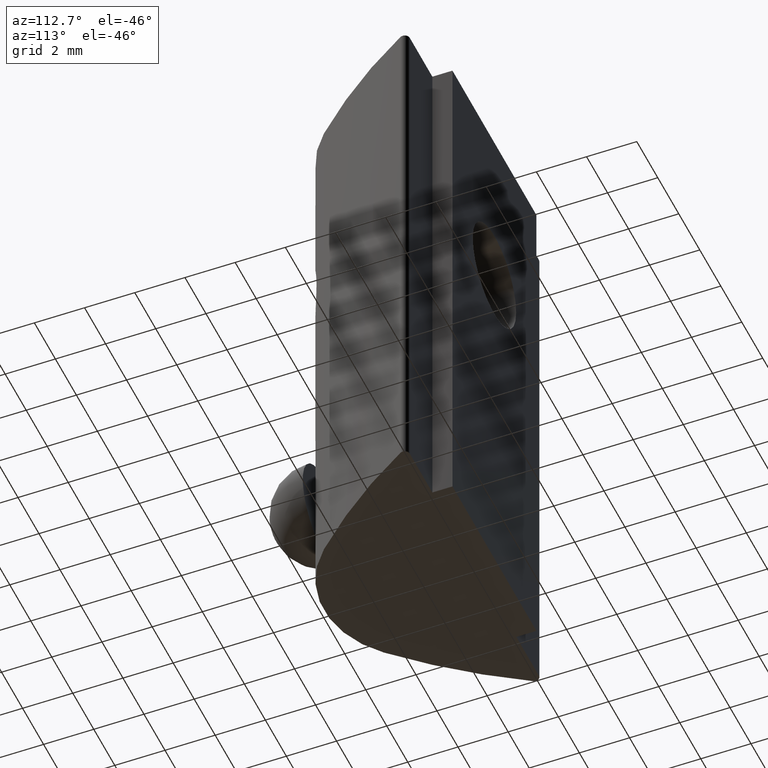
[diagram: clean part render]
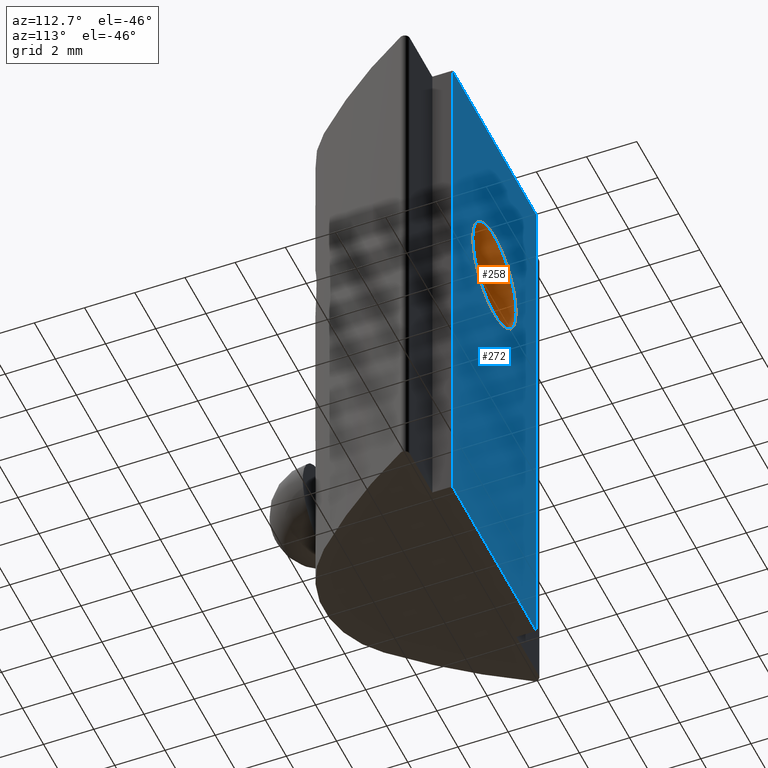
[diagram: same view with the hole feature highlighted: cylindrical wall and planar end face, labeled with their STEP entity ids]
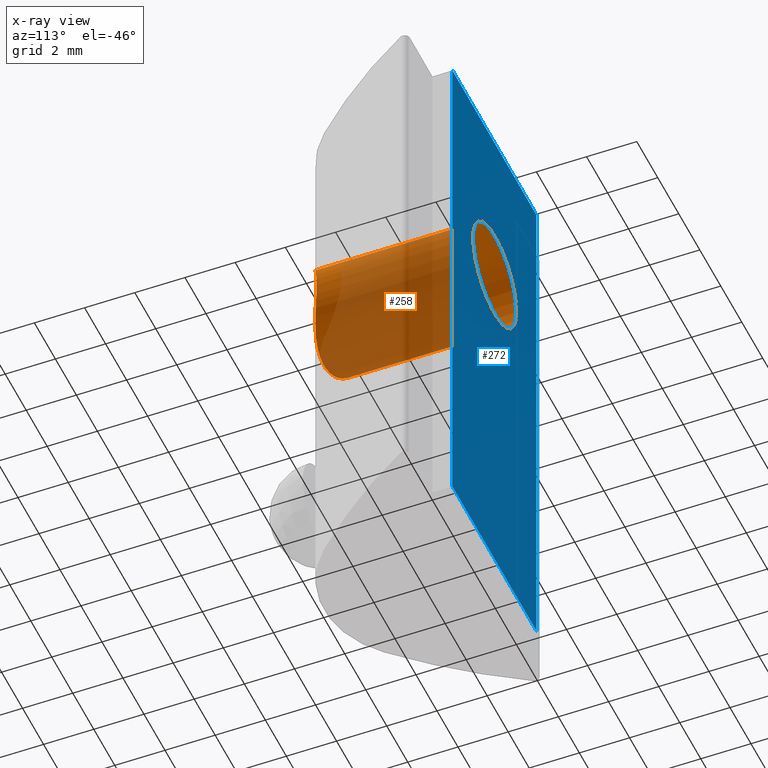
[diagram: x-ray of the same camera — body ghosted, the hole faces saturated]
A machine part, auxiliary view. The highlighted faces form one hole feature of diameter 4.134 mm: the cylindrical wall (entity #258, orange) and its adjacent planar end face (entity #272, blue) — they share a circular edge in the B-rep.
The next image is the same camera in x-ray (body ghosted, the hole faces saturated) — the bore reads through the body.
Wall:
#67=FACE_BOUND('',#101,.T.);
#71=CIRCLE('',#277,2.067);
#84=FACE_OUTER_BOUND('',#100,.T.);
#100=EDGE_LOOP('',(#180));
#101=EDGE_LOOP('',(#181));
#120=B_SPLINE_CURVE_WITH_KNOTS('',3,(#389,#390,#391,#392,#393,#394,#395,
#396,#397,#398,#399,#400,#401,#402,#403,#404,#405,#406,#407,#408,#409,#410,
#411,#412,#413,#414,#415,#416,#417,#418,#419,#420,#421,#422),
 .UNSPECIFIED.,.T.,.F.,(4,2,2,2,2,2,2,2,2,2,2,2,2,2,2,2,4),(0.,0.0797064293911206,
0.159412858782241,0.238866490505307,0.318320122228373,0.397773753951439,
0.477227385674505,0.556933815065625,0.636640244456746,0.716346673847867,
0.796053103238987,0.875506734962053,0.954960366685119,1.03441399840818,
1.11386763013125,1.19357405952237,1.27328048891349),.UNSPECIFIED.);
#121=VERTEX_POINT('',#388);
#122=VERTEX_POINT('',#423);
#145=EDGE_CURVE('',#121,#121,#120,.T.);
#146=EDGE_CURVE('',#122,#122,#71,.T.);
#180=ORIENTED_EDGE('',*,*,#145,.F.);
#181=ORIENTED_EDGE('',*,*,#146,.F.);
#252=CYLINDRICAL_SURFACE('',#276,2.067);
#258=ADVANCED_FACE('',(#84,#67),#252,.F.);
#276=AXIS2_PLACEMENT_3D('',#387,#307,#308);
#277=AXIS2_PLACEMENT_3D('',#424,#309,#310);
#307=DIRECTION('center_axis',(0.,1.,0.));
#308=DIRECTION('ref_axis',(1.,0.,0.));
#309=DIRECTION('center_axis',(0.,-1.,0.));
#310=DIRECTION('ref_axis',(1.,0.,0.));
#387=CARTESIAN_POINT('Origin',(0.,-20.0842607003705,15.));
#388=CARTESIAN_POINT('',(-2.067,0.57545462871347,15.));
#389=CARTESIAN_POINT('Ctrl Pts',(-2.067,0.57545462871347,15.));
#390=CARTESIAN_POINT('Ctrl Pts',(-2.067,0.57545462871347,15.2656880979704));
#391=CARTESIAN_POINT('Ctrl Pts',(-2.01285292870242,0.541243036128579,15.5444925823021));
#392=CARTESIAN_POINT('Ctrl Pts',(-1.80059007720931,0.426143478067878,16.0516303580367));
#393=CARTESIAN_POINT('Ctrl Pts',(-1.6426154579373,0.347653589298708,16.2805639754879));
#394=CARTESIAN_POINT('Ctrl Pts',(-1.28113811844711,0.205758910039444,16.6420413149781));
#395=CARTESIAN_POINT('Ctrl Pts',(-1.05201595879367,0.132126138343621,16.8004341776699));
#396=CARTESIAN_POINT('Ctrl Pts',(-0.544033155353859,0.0287012506451315,
17.0130397274761));
#397=CARTESIAN_POINT('Ctrl Pts',(-0.264845439076887,2.51405685171475E-17,
17.067));
#398=CARTESIAN_POINT('Ctrl Pts',(0.264845439076886,-2.51405685171474E-17,
17.067));
#399=CARTESIAN_POINT('Ctrl Pts',(0.544033155353857,0.0287012506451316,17.0130397274761));
#400=CARTESIAN_POINT('Ctrl Pts',(1.05201595879367,0.132126138343621,16.8004341776699));
#401=CARTESIAN_POINT('Ctrl Pts',(1.28113811844711,0.205758910039443,16.6420413149781));
#402=CARTESIAN_POINT('Ctrl Pts',(1.6426154579373,0.347653589298708,16.2805639754879));
#403=CARTESIAN_POINT('Ctrl Pts',(1.80059007720931,0.426143478067878,16.0516303580367));
#404=CARTESIAN_POINT('Ctrl Pts',(2.01285292870242,0.541243036128579,15.5444925823021));
#405=CARTESIAN_POINT('Ctrl Pts',(2.067,0.57545462871347,15.2656880979704));
#406=CARTESIAN_POINT('Ctrl Pts',(2.067,0.57545462871347,14.7343119020296));
#407=CARTESIAN_POINT('Ctrl Pts',(2.01285292870242,0.541243036128579,14.4555074176979));
#408=CARTESIAN_POINT('Ctrl Pts',(1.80059007720931,0.426143478067879,13.9483696419634));
#409=CARTESIAN_POINT('Ctrl Pts',(1.6426154579373,0.347653589298708,13.7194360245121));
#410=CARTESIAN_POINT('Ctrl Pts',(1.28113811844711,0.205758910039444,13.3579586850219));
#411=CARTESIAN_POINT('Ctrl Pts',(1.05201595879367,0.132126138343622,13.1995658223301));
#412=CARTESIAN_POINT('Ctrl Pts',(0.544033155353859,0.0287012506451318,12.9869602725239));
#413=CARTESIAN_POINT('Ctrl Pts',(0.264845439076887,4.19009475285791E-17,
12.933));
#414=CARTESIAN_POINT('Ctrl Pts',(-0.264845439076886,-4.19009475285791E-17,
12.933));
#415=CARTESIAN_POINT('Ctrl Pts',(-0.544033155353857,0.0287012506451314,
12.9869602725239));
#416=CARTESIAN_POINT('Ctrl Pts',(-1.05201595879367,0.132126138343621,13.1995658223301));
#417=CARTESIAN_POINT('Ctrl Pts',(-1.28113811844711,0.205758910039443,13.3579586850219));
#418=CARTESIAN_POINT('Ctrl Pts',(-1.6426154579373,0.347653589298708,13.7194360245121));
#419=CARTESIAN_POINT('Ctrl Pts',(-1.80059007720931,0.426143478067878,13.9483696419634));
#420=CARTESIAN_POINT('Ctrl Pts',(-2.01285292870242,0.541243036128579,14.4555074176979));
#421=CARTESIAN_POINT('Ctrl Pts',(-2.067,0.57545462871347,14.7343119020296));
#422=CARTESIAN_POINT('Ctrl Pts',(-2.067,0.57545462871347,15.));
#423=CARTESIAN_POINT('',(2.067,6.8,15.));
#424=CARTESIAN_POINT('Origin',(0.,6.8,15.));
End face:
#24=LINE('',#462,#45);
#32=LINE('',#481,#53);
#35=LINE('',#491,#56);
#36=LINE('',#493,#57);
#45=VECTOR('',#347,8.);
#53=VECTOR('',#367,22.);
#56=VECTOR('',#380,22.);
#57=VECTOR('',#383,8.);
#65=PLANE('',#303);
#70=FACE_BOUND('',#118,.T.);
#71=CIRCLE('',#277,2.067);
#98=FACE_OUTER_BOUND('',#117,.T.);
#117=EDGE_LOOP('',(#237,#238,#239,#240));
#118=EDGE_LOOP('',(#241));
#122=VERTEX_POINT('',#423);
#136=VERTEX_POINT('',#459);
#137=VERTEX_POINT('',#461);
#142=VERTEX_POINT('',#479);
#144=VERTEX_POINT('',#489);
#146=EDGE_CURVE('',#122,#122,#71,.T.);
#163=EDGE_CURVE('',#137,#136,#24,.T.);
#173=EDGE_CURVE('',#142,#136,#32,.T.);
#178=EDGE_CURVE('',#144,#137,#35,.T.);
#179=EDGE_CURVE('',#144,#142,#36,.T.);
#237=ORIENTED_EDGE('',*,*,#179,.F.);
#238=ORIENTED_EDGE('',*,*,#178,.T.);
#239=ORIENTED_EDGE('',*,*,#163,.T.);
#240=ORIENTED_EDGE('',*,*,#173,.F.);
#241=ORIENTED_EDGE('',*,*,#146,.T.);
#272=ADVANCED_FACE('',(#98,#70),#65,.T.);
#277=AXIS2_PLACEMENT_3D('',#424,#309,#310);
#303=AXIS2_PLACEMENT_3D('',#492,#381,#382);
#309=DIRECTION('center_axis',(0.,-1.,0.));
#310=DIRECTION('ref_axis',(1.,0.,0.));
#347=DIRECTION('',(1.,7.25055979063407E-34,0.));
#367=DIRECTION('',(0.,0.,1.));
#380=DIRECTION('',(0.,0.,1.));
#381=DIRECTION('center_axis',(0.,1.,0.));
#382=DIRECTION('ref_axis',(-1.,0.,0.));
#383=DIRECTION('',(1.,7.25055979063407E-34,0.));
#423=CARTESIAN_POINT('',(2.067,6.8,15.));
#424=CARTESIAN_POINT('Origin',(0.,6.8,15.));
#459=CARTESIAN_POINT('',(4.,6.8,22.));
#461=CARTESIAN_POINT('',(-4.,6.8,22.));
#462=CARTESIAN_POINT('',(-2.46519032881558E-33,6.8,22.));
#479=CARTESIAN_POINT('',(4.,6.8,0.));
#481=CARTESIAN_POINT('',(4.,6.8,0.));
#489=CARTESIAN_POINT('',(-4.,6.8,0.));
#491=CARTESIAN_POINT('',(-4.,6.8,0.));
#492=CARTESIAN_POINT('Origin',(-2.46519032881558E-33,6.8,0.));
#493=CARTESIAN_POINT('',(-2.46519032881558E-33,6.8,0.));